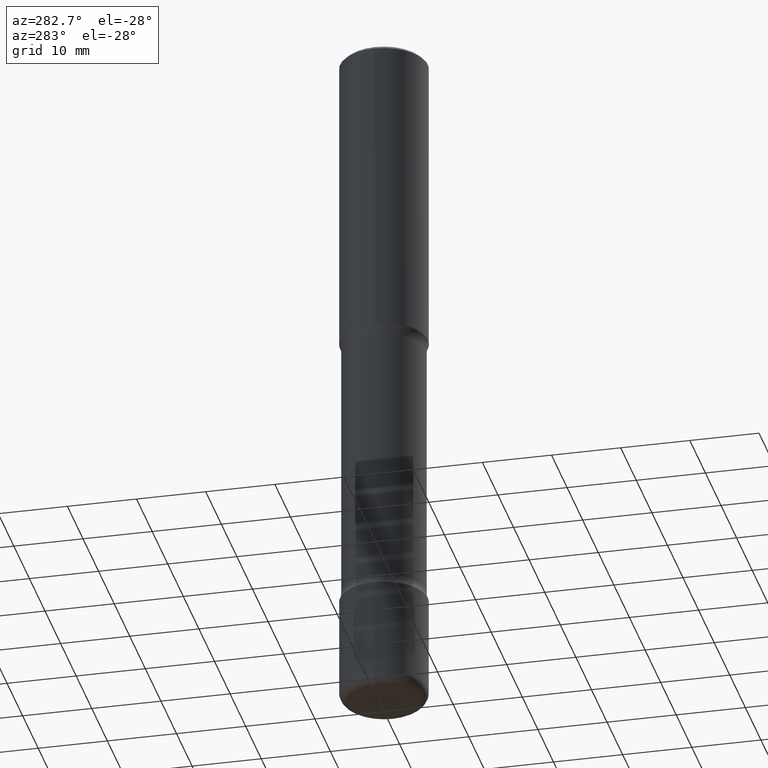
[diagram: clean part render]
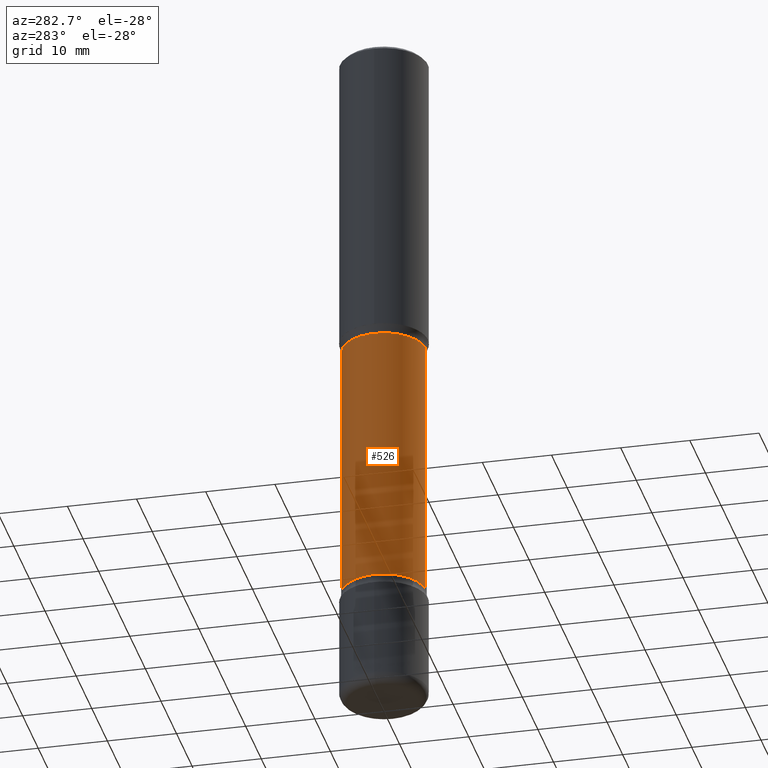
[diagram: same view with one face highlighted and labeled with its STEP entity id]
A machine part, auxiliary view. The second image highlights one B-rep face of the part: STEP entity #526.
In plain terms, the highlighted cylindrical surface (partial cylindrical patch) has radius 6.0325 mm, axis along (0, -0, -1).
Its self-contained STEP definition (entity closure, byte-faithful):
#9 = EDGE_CURVE ( 'NONE', #449, #11, #533, .T. ) ;
#11 = VERTEX_POINT ( 'NONE', #395 ) ;
#25 = VECTOR ( 'NONE', #259, 39.37007874015748143 ) ;
#32 = DIRECTION ( 'NONE',  ( 2.172837969221398724E-29, -3.881904214558802973E-15, -1.000000000000000000 ) ) ;
#34 = EDGE_CURVE ( 'NONE', #449, #313, #264, .T. ) ;
#43 = FACE_OUTER_BOUND ( 'NONE', #426, .T. ) ;
#51 = CARTESIAN_POINT ( 'NONE',  ( -1.629368274470639626E-15, -0.2375000000000137834, -3.999999999999998668 ) ) ;
#55 = AXIS2_PLACEMENT_3D ( 'NONE', #183, #356, #448 ) ;
#117 = CARTESIAN_POINT ( 'NONE',  ( 8.135067456768282338E-29, -1.157223916634853388E-14, -3.320513763205740876 ) ) ;
#138 = CARTESIAN_POINT ( 'NONE',  ( -1.672246386956758004E-15, -0.2375000000000049849, -1.804486236794257126 ) ) ;
#167 = DIRECTION ( 'NONE',  ( 2.172837969221398724E-29, -3.881904214558802973E-15, -1.000000000000000000 ) ) ;
#168 = ORIENTED_EDGE ( 'NONE', *, *, #34, .F. ) ;
#183 = CARTESIAN_POINT ( 'NONE',  ( 4.840985284996614452E-29, -5.687165522184640323E-15, -1.804486236794258014 ) ) ;
#195 = CARTESIAN_POINT ( 'NONE',  ( -1.672246386956728816E-15, -0.2375000000000115352, -3.320513763205739988 ) ) ;
#201 = DIRECTION ( 'NONE',  ( 6.982962677686265133E-15, 1.000000000000000000, -4.601007147224022844E-15 ) ) ;
#209 = DIRECTION ( 'NONE',  ( 6.982962677686266711E-15, 1.000000000000000000, -4.601007147224030733E-15 ) ) ;
#237 = CARTESIAN_POINT ( 'NONE',  ( 1.658453635950569005E-15, 0.2374999999999883871, -3.320513763205742208 ) ) ;
#242 = EDGE_CURVE ( 'NONE', #313, #308, #491, .T. ) ;
#257 = ORIENTED_EDGE ( 'NONE', *, *, #9, .T. ) ;
#259 = DIRECTION ( 'NONE',  ( 2.172837969221398724E-29, -3.881904214558802973E-15, -1.000000000000000000 ) ) ;
#264 = LINE ( 'NONE', #51, #400 ) ;
#302 = CARTESIAN_POINT ( 'NONE',  ( 9.611480951638210847E-29, -1.420993965269486716E-14, -4.000000000000000000 ) ) ;
#305 = CARTESIAN_POINT ( 'NONE',  ( 1.658453635950581429E-15, 0.2374999999999853895, -4.000000000000000888 ) ) ;
#308 = VERTEX_POINT ( 'NONE', #237 ) ;
#313 = VERTEX_POINT ( 'NONE', #195 ) ;
#317 = ORIENTED_EDGE ( 'NONE', *, *, #463, .T. ) ;
#320 = AXIS2_PLACEMENT_3D ( 'NONE', #117, #32, #201 ) ;
#356 = DIRECTION ( 'NONE',  ( 2.172837969221398724E-29, -3.881904214558802973E-15, -1.000000000000000000 ) ) ;
#364 = AXIS2_PLACEMENT_3D ( 'NONE', #302, #167, #209 ) ;
#366 = DIRECTION ( 'NONE',  ( 2.172837969221398724E-29, -3.881904214558802973E-15, -1.000000000000000000 ) ) ;
#391 = CYLINDRICAL_SURFACE ( 'NONE', #364, 0.2374999999999995726 ) ;
#395 = CARTESIAN_POINT ( 'NONE',  ( 1.658453635950531534E-15, 0.2374999999999935496, -1.804486236794258680 ) ) ;
#398 = LINE ( 'NONE', #305, #25 ) ;
#400 = VECTOR ( 'NONE', #366, 39.37007874015748143 ) ;
#426 = EDGE_LOOP ( 'NONE', ( #168, #257, #317, #478 ) ) ;
#448 = DIRECTION ( 'NONE',  ( 6.982962677686266711E-15, 1.000000000000000000, -3.450755360418027783E-15 ) ) ;
#449 = VERTEX_POINT ( 'NONE', #138 ) ;
#463 = EDGE_CURVE ( 'NONE', #11, #308, #398, .T. ) ;
#478 = ORIENTED_EDGE ( 'NONE', *, *, #242, .F. ) ;
#491 = CIRCLE ( 'NONE', #320, 0.2374999999999999611 ) ;
#526 = ADVANCED_FACE ( 'NONE', ( #43 ), #391, .T. ) ;
#533 = CIRCLE ( 'NONE', #55, 0.2374999999999992395 ) ;